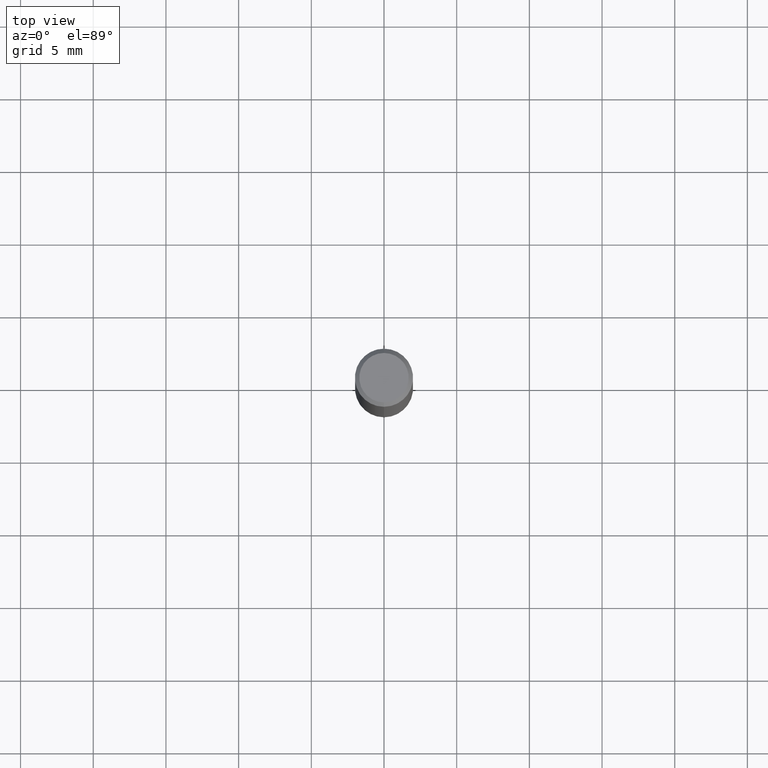
[diagram: clean part render]
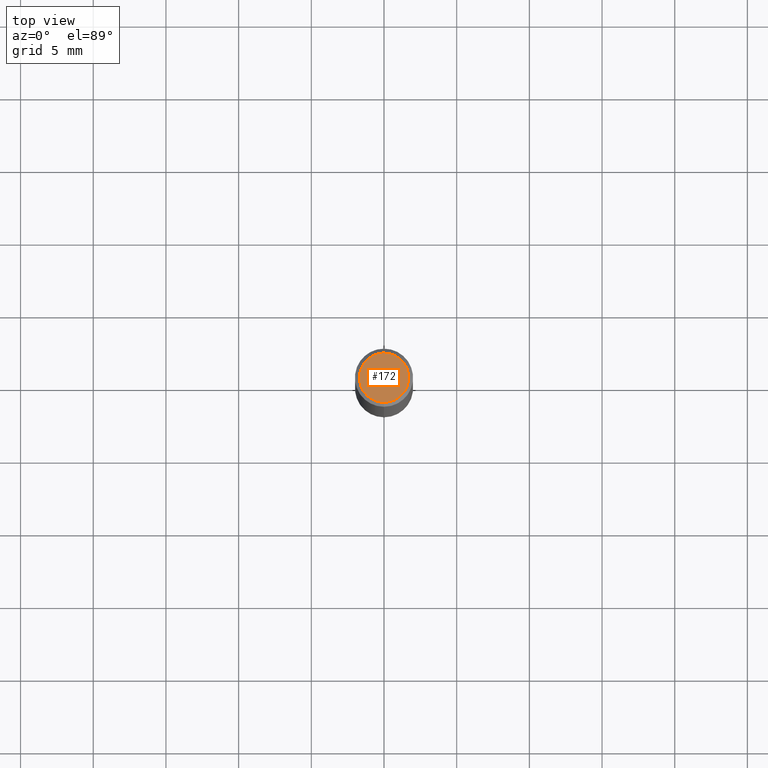
[diagram: same view with one face highlighted and labeled with its STEP entity id]
A machine part, top view. The second image highlights one B-rep face of the part: STEP entity #172.
In plain terms, the highlighted planar face has unit normal (-0, 0, 1).
Its self-contained STEP definition (entity closure, byte-faithful):
#100=VERTEX_POINT('',#253);
#124=EDGE_CURVE('',#230,#100,#280,.T.);
#142=EDGE_CURVE('',#100,#230,#300,.T.);
#172=ADVANCED_FACE('',(#333),#334,.T.);
#230=VERTEX_POINT('',#400);
#253=CARTESIAN_POINT('',(0.0,1.7,0.0));
#280=CIRCLE('',#449,1.7);
#300=CIRCLE('',#478,1.7);
#333=FACE_OUTER_BOUND('',#522,.T.);
#334=PLANE('',#523);
#400=CARTESIAN_POINT('',(2.08183080149804E-016,-1.7,0.0));
#449=AXIS2_PLACEMENT_3D('',#635,#636,#637);
#478=AXIS2_PLACEMENT_3D('',#661,#662,#663);
#522=EDGE_LOOP('',(#707,#708));
#523=AXIS2_PLACEMENT_3D('',#709,#710,#711);
#635=CARTESIAN_POINT('',(0.0,0.0,0.0));
#636=DIRECTION('',(0.0,0.0,-1.0));
#637=DIRECTION('',(0.0,1.0,0.0));
#661=CARTESIAN_POINT('',(0.0,0.0,0.0));
#662=DIRECTION('',(0.0,0.0,-1.0));
#663=DIRECTION('',(0.0,1.0,0.0));
#707=ORIENTED_EDGE('',*,*,#142,.F.);
#708=ORIENTED_EDGE('',*,*,#124,.F.);
#709=CARTESIAN_POINT('',(0.0,0.85,0.0));
#710=DIRECTION('',(-0.0,0.0,1.0));
#711=DIRECTION('',(0.0,-1.0,0.0));